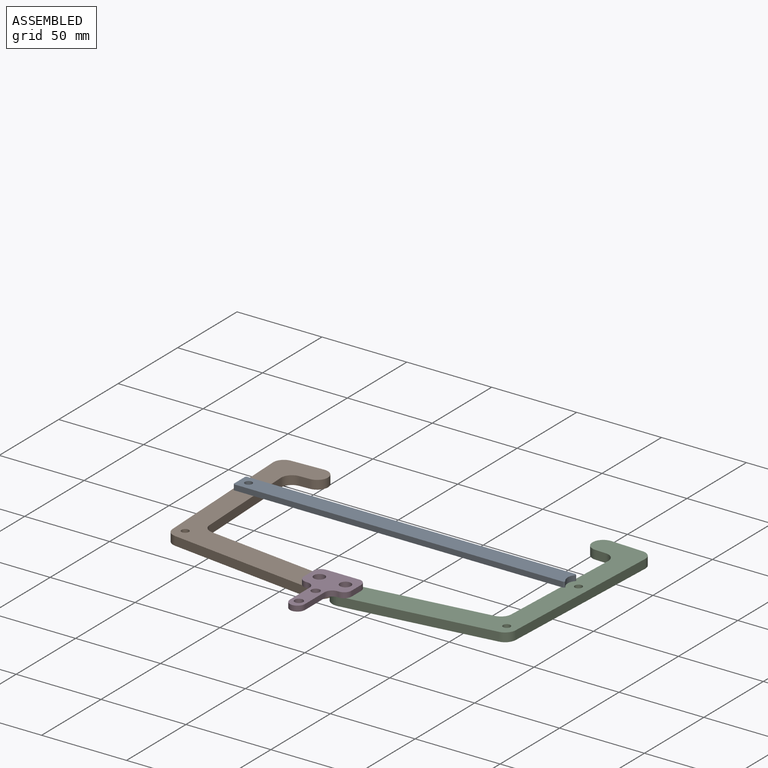
[diagram: assembled view]
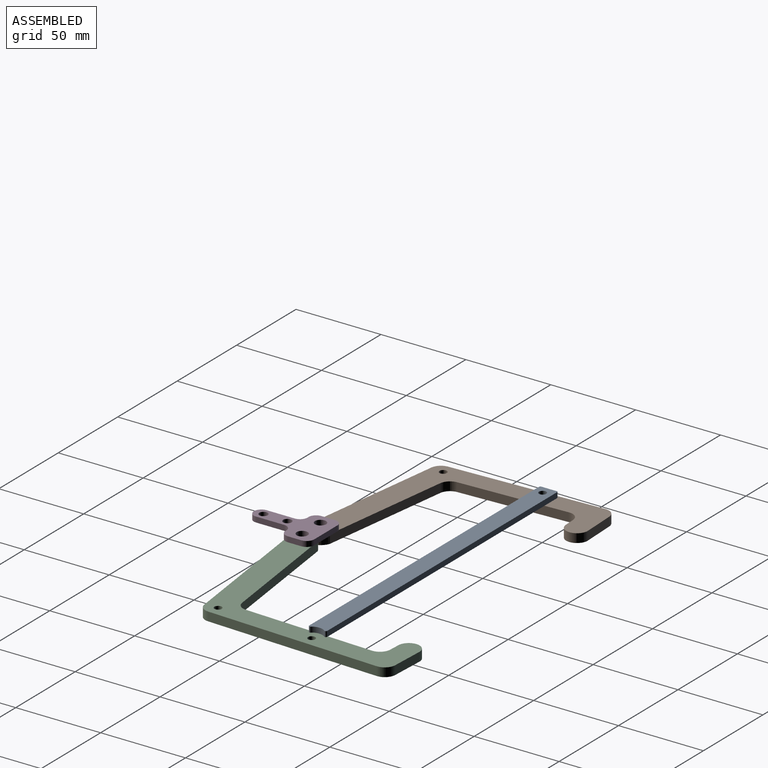
[diagram: assembled view, second angle]
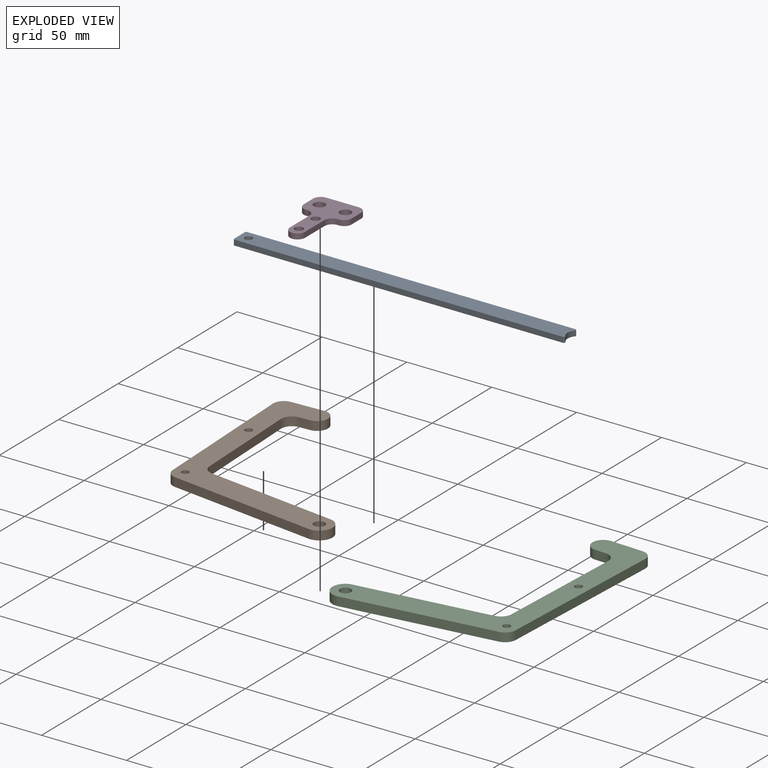
[diagram: exploded view]
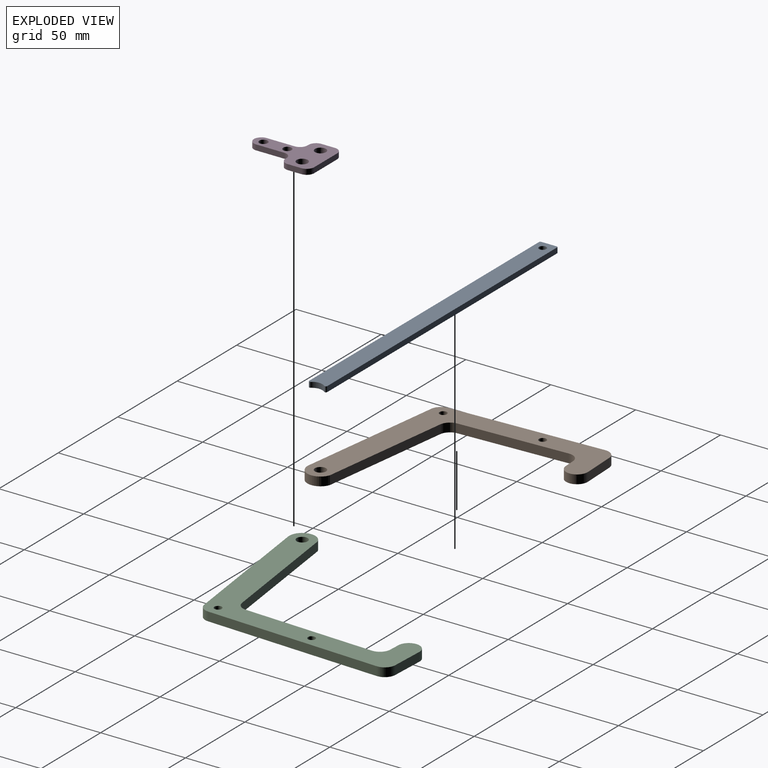
[diagram: exploded view, second angle]
ASSEMBLY  parts=4 mates=4
PART A: 11 faces, bbox 194.9x10.7x3.2 mm
  f0: plane 9.08x3.18mm, normal (-1,0,0), area 28.8mm2, adj f5,f6,f7,f8
  f1: plane 193.34x3.18mm, normal (0,-1,0), area 613.8mm2, adj f5,f6,f7,f9
  f2: cylinder r=6.35mm len=8.07mm, axis (0,0,-1), area 27.8mm2, adj f5,f6,f9,f10
  f3: cylinder r=2.16mm len=4.32mm, axis (0,0,-1), area 43.1mm2, adj f5,f6
  f4: plane 193.34x3.18mm, normal (0,1,0), area 613.8mm2, adj f5,f6,f8,f10
  f5: plane 194.93x10.67mm, normal (0,0,1), area 2054.8mm2, adj f0,f1,f2,f3,f4,f7,f8,f9
  f6: plane 194.93x10.67mm, normal (0,0,-1), area 2054.8mm2, adj f0,f1,f2,f3,f4,f7,f8,f9
  f7: cylinder r=0.79mm len=3.18mm, axis (0,0,-1), area 4mm2, adj f0,f1,f5,f6
  f8: cylinder r=0.79mm len=3.18mm, axis (0,0,1), area 4mm2, adj f0,f4,f5,f6
  f9: cylinder r=0.79mm len=3.18mm, axis (0,0,-1), area 5.7mm2, adj f1,f2,f5,f6
  f10: cylinder r=0.79mm len=3.18mm, axis (0,0,-1), area 5.7mm2, adj f2,f4,f5,f6
PART B: 17 faces, bbox 104.9x114.8x5.2 mm
  f0: plane 19.03x5.21mm, normal (-0.04,1,0), area 99.2mm2, adj f10,f11,f12,f16
  f1: plane 89.84x5.21mm, normal (-1,-0.04,0), area 468.2mm2, adj f10,f11,f12,f13
  f2: plane 86.75x11.42mm, normal (-0.13,-0.99,0), area 455.6mm2, adj f3,f10,f11,f13
  f3: cylinder r=7.69mm len=14.98mm, axis (0,0,-1), area 118mm2, adj f2,f4,f10,f11
  f4: plane 78.11x10.28mm, normal (0.13,0.99,0), area 410.2mm2, adj f3,f10,f11,f14
  f5: plane 63.93x5.21mm, normal (1,0.04,0), area 333.2mm2, adj f10,f11,f14,f15
  f6: plane 6.34x5.21mm, normal (0.04,-1,0), area 33.1mm2, adj f10,f11,f15,f16
  f7: cylinder r=2.16mm len=5.21mm, axis (0,0,-1), area 70.6mm2, adj f10,f11
  f8: cylinder r=2.16mm len=5.21mm, axis (0,0,-1), area 70.6mm2, adj f10,f11
  f9: cylinder r=3.25mm len=6.5mm, axis (0,0,-1), area 106.4mm2, adj f10,f11
  f10: plane 114.8x104.89mm, normal (0,0,1), area 2798.1mm2, adj f0,f1,f2,f3,f4,f5,f6,f7
  f11: plane 114.8x104.89mm, normal (0,0,-1), area 2798.1mm2, adj f0,f1,f2,f3,f4,f5,f6,f7
  f12: cylinder r=6.35mm len=6.62mm, axis (0,0,1), area 51.9mm2, adj f0,f1,f10,f11
  f13: cylinder r=6.35mm len=6.02mm, axis (0,0,-1), area 46.2mm2, adj f1,f2,f10,f11
  f14: cylinder r=6.35mm len=6.02mm, axis (0,0,1), area 46.2mm2, adj f4,f5,f10,f11
  f15: cylinder r=6.35mm len=6.62mm, axis (0,0,1), area 51.9mm2, adj f5,f6,f10,f11
  f16: cylinder r=6.35mm len=12.69mm, axis (0,0,-1), area 103.9mm2, adj f0,f6,f10,f11
PART C: 17 faces, bbox 105.4x127.5x5.2 mm
  f0: plane 102.52x5.21mm, normal (1,-0.04,0), area 534.4mm2, adj f10,f11,f12,f16
  f1: plane 19.03x5.21mm, normal (0.04,1,0), area 99.2mm2, adj f10,f11,f12,f13
  f2: plane 6.34x5.21mm, normal (-0.04,-1,0), area 33.1mm2, adj f10,f11,f13,f14
  f3: plane 76.61x5.21mm, normal (-1,0.04,0), area 399.3mm2, adj f10,f11,f14,f15
  f4: plane 78.11x10.28mm, normal (-0.13,0.99,0), area 410.2mm2, adj f5,f10,f11,f15
  f5: cylinder r=7.69mm len=14.98mm, axis (0,0,-1), area 118mm2, adj f4,f9,f10,f11
  f6: cylinder r=2.16mm len=5.21mm, axis (0,0,-1), area 70.6mm2, adj f10,f11
  f7: cylinder r=3.25mm len=6.5mm, axis (0,0,-1), area 106.4mm2, adj f10,f11
  f8: cylinder r=2.16mm len=5.21mm, axis (0,0,-1), area 70.6mm2, adj f10,f11
  f9: plane 86.75x11.42mm, normal (0.13,-0.99,0), area 455.6mm2, adj f5,f10,f11,f16
  f10: plane 127.49x105.45mm, normal (0,0,1), area 2959.4mm2, adj f0,f1,f2,f3,f4,f5,f6,f7
  f11: plane 127.49x105.45mm, normal (0,0,-1), area 2959.4mm2, adj f0,f1,f2,f3,f4,f5,f6,f7
  f12: cylinder r=6.35mm len=6.62mm, axis (0,0,1), area 51.9mm2, adj f0,f1,f10,f11
  f13: cylinder r=6.35mm len=12.69mm, axis (0,0,-1), area 103.9mm2, adj f1,f2,f10,f11
  f14: cylinder r=6.35mm len=6.62mm, axis (0,0,1), area 51.9mm2, adj f2,f3,f10,f11
  f15: cylinder r=6.35mm len=6.02mm, axis (0,0,1), area 46.2mm2, adj f3,f4,f10,f11
  f16: cylinder r=6.35mm len=6.02mm, axis (0,0,-1), area 46.2mm2, adj f0,f9,f10,f11
PART D: 20 faces, bbox 28.2x42.3x3.2 mm
  f0: plane 19.35x3.18mm, normal (0,1,0), area 61.4mm2, adj f11,f12,f17,f18
  f1: plane 8.03x3.18mm, normal (-1,0,0), area 25.5mm2, adj f11,f12,f13,f18
  f2: plane 3.18x0.78mm, normal (0,-1,0), area 2.5mm2, adj f11,f12,f13,f14
  f3: plane 16.51x3.18mm, normal (-1,0,0), area 52.4mm2, adj f11,f12,f14,f19
  f4: plane 16.51x3.18mm, normal (1,0,0), area 52.4mm2, adj f11,f12,f15,f19
  f5: plane 3.18x0.78mm, normal (0,-1,0), area 2.5mm2, adj f11,f12,f15,f16
  f6: cylinder r=2.49mm len=4.98mm, axis (0,0,-1), area 49.7mm2, adj f11,f12
  f7: cylinder r=3.25mm len=6.5mm, axis (0,0,-1), area 64.9mm2, adj f11,f12
  f8: cylinder r=3.25mm len=6.5mm, axis (0,0,-1), area 64.9mm2, adj f11,f12
  f9: plane 8.03x3.18mm, normal (1,0,0), area 25.5mm2, adj f11,f12,f16,f17
  f10: cylinder r=2.49mm len=4.98mm, axis (0,0,-1), area 49.7mm2, adj f11,f12
  f11: plane 42.32x28.24mm, normal (0,0,1), area 581.2mm2, adj f0,f1,f2,f3,f4,f5,f6,f7
  f12: plane 42.32x28.24mm, normal (0,0,-1), area 581.2mm2, adj f0,f1,f2,f3,f4,f5,f6,f7
  f13: cylinder r=4.45mm len=4.45mm, axis (0,0,-1), area 22.2mm2, adj f1,f2,f11,f12
  f14: cylinder r=4.45mm len=4.45mm, axis (0,0,1), area 22.2mm2, adj f2,f3,f11,f12
  f15: cylinder r=4.45mm len=4.45mm, axis (0,0,-1), area 22.2mm2, adj f4,f5,f11,f12
  f16: cylinder r=4.45mm len=4.45mm, axis (0,0,1), area 22.2mm2, adj f5,f9,f11,f12
  f17: cylinder r=4.45mm len=4.45mm, axis (0,0,-1), area 22.2mm2, adj f0,f9,f11,f12
  f18: cylinder r=4.45mm len=4.45mm, axis (0,0,1), area 22.2mm2, adj f0,f1,f11,f12
  f19: cylinder r=4.45mm len=8.89mm, axis (0,0,1), area 44.3mm2, adj f3,f4,f11,f12
PLACE A t=(-5.11,97.96,-4.64)mm
PLACE B t=(-5.11,97.96,-4.64)mm
PLACE C t=(-5.11,97.96,-4.64)mm
PLACE D t=(-5.11,97.96,-4.64)mm
MATE cylindrical B.f3 <-> D.f7  axis (0,0,1) through (-12.8,30.54,0.57)mm
MATE revolute D.f7 <-> B.f3  axis (0,0,-1) through (-12.8,30.54,0.57)mm
MATE revolute D.f8 <-> C.f5  axis (0,0,-1) through (2.58,30.54,0.57)mm
MATE fastened A.f3 <-> B.f7  axis (0,0,-1) through (-102.27,98.74,0.57)mm
